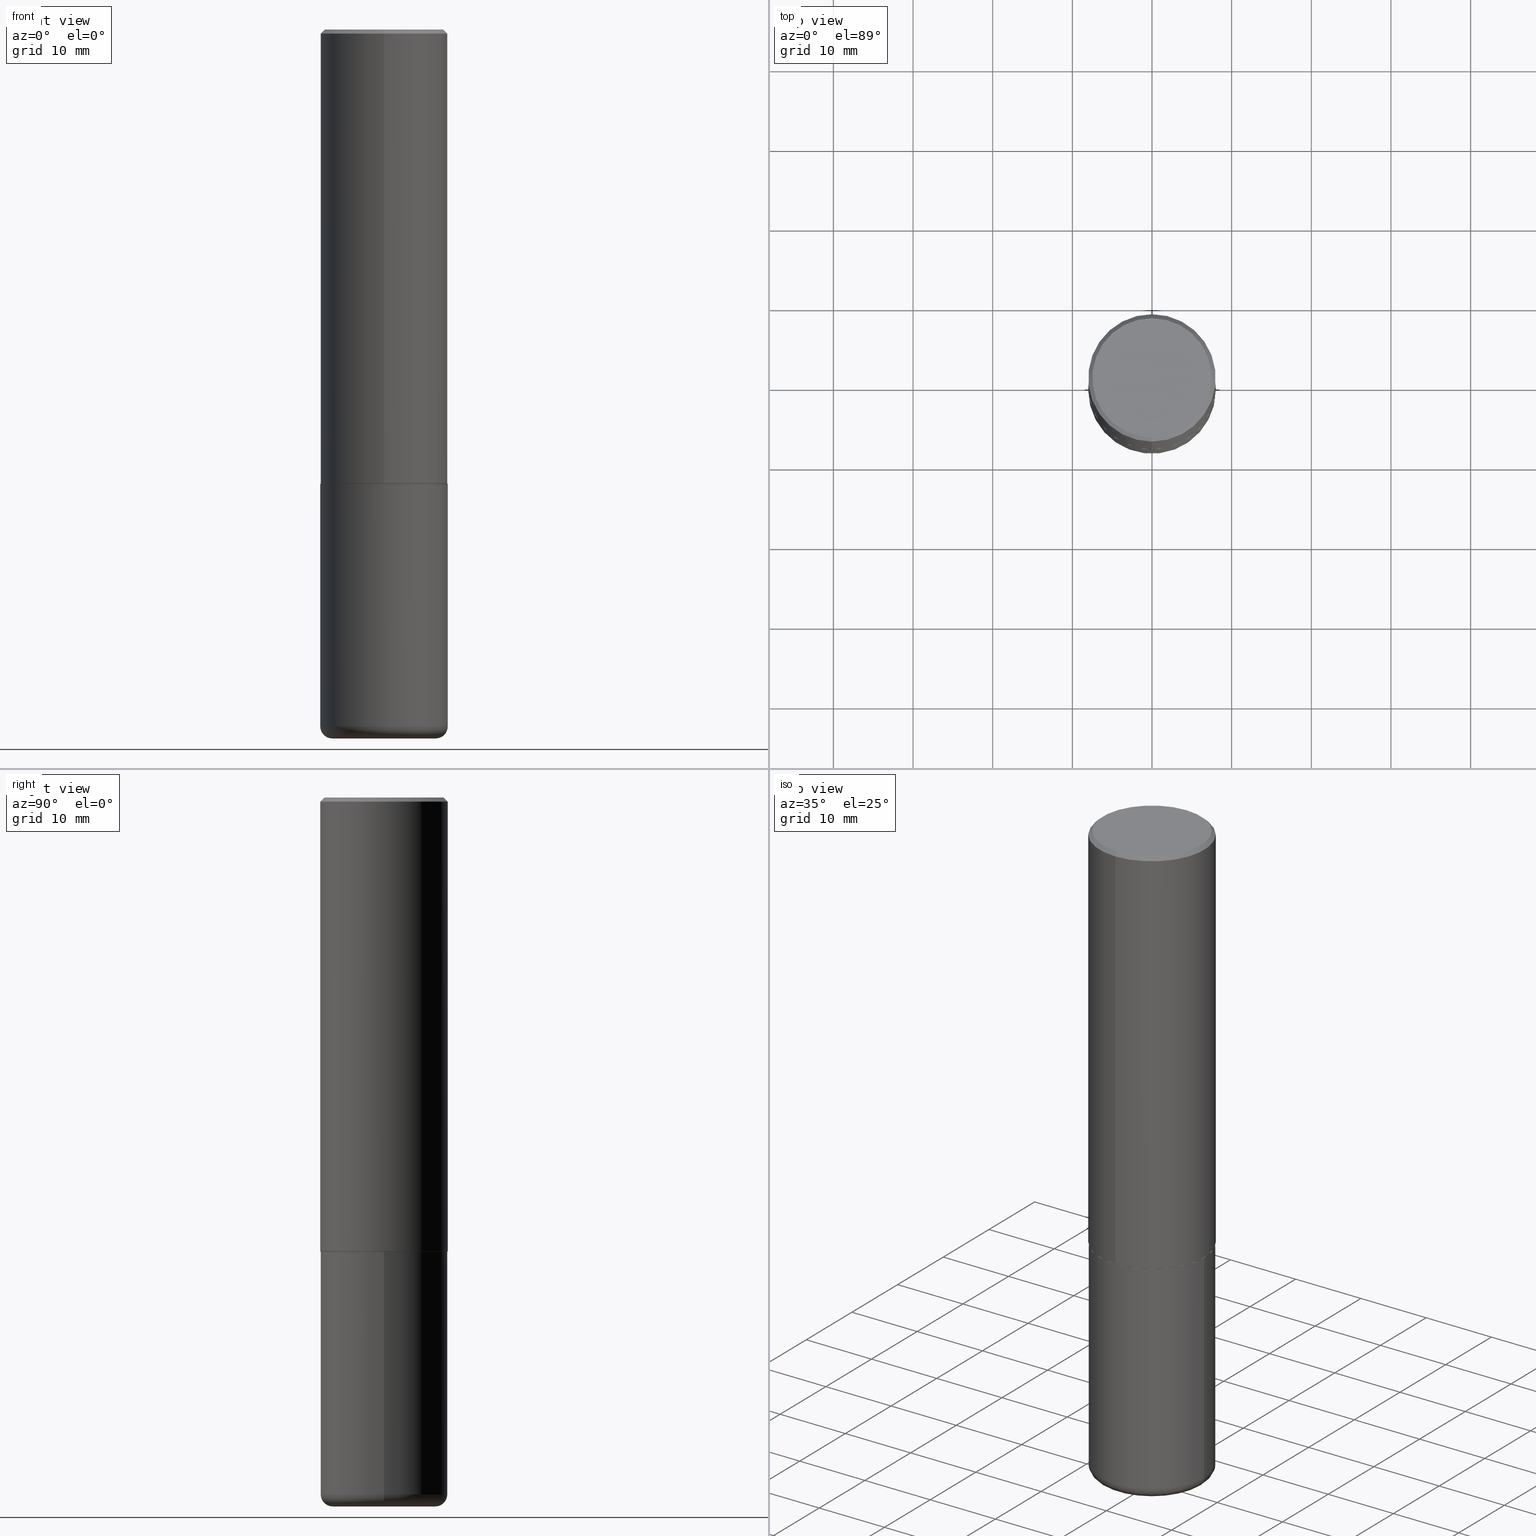
[diagram: canonical four-view strip — front | top / right | iso, engineering-drawing reading convention]
A machine part, canonical four-view strip (front | top / right | iso — engineering-drawing reading convention). The complete STEP part file that produces these views, byte-faithful:
ISO-10303-21;
HEADER;
FILE_DESCRIPTION (( 'STEP AP203' ),
    '1' );
FILE_NAME ('42688.STEP',
    '2024-03-04T01:51:00',
    ( '' ),
    ( '' ),
    'SwSTEP 2.0',
    'SolidWorks 2023',
    '' );
FILE_SCHEMA (( 'CONFIG_CONTROL_DESIGN' ));
ENDSEC;

DATA;
#1 = CARTESIAN_POINT ( 'NONE',  ( 5.486851494858434265E-29, -7.829707675025093274E-15, -2.243099999999999206 ) ) ;
#2 = CARTESIAN_POINT ( 'NONE',  ( 2.199284095337288688E-15, 0.3149499999999997857, -0.02000000000000116962 ) ) ;
#3 = AXIS2_PLACEMENT_3D ( 'NONE', #126, #71, #225 ) ;
#4 = CARTESIAN_POINT ( 'NONE',  ( 8.568678149992099474E-29, -1.223380146317249786E-14, -3.503899999999999793 ) ) ;
#5 = EDGE_CURVE ( 'NONE', #236, #306, #147, .T. ) ;
#6 = DIRECTION ( 'NONE',  ( 1.000000000000000000, -6.982962677686263555E-15, 0.000000000000000000 ) ) ;
#7 =( GEOMETRIC_REPRESENTATION_CONTEXT ( 3 ) GLOBAL_UNCERTAINTY_ASSIGNED_CONTEXT ( ( #194 ) ) GLOBAL_UNIT_ASSIGNED_CONTEXT ( ( #234, #329, #139 ) ) REPRESENTATION_CONTEXT ( 'NONE', 'WORKASPACE' ) );
#8 = LOCAL_TIME ( 20, 51, 0.000000000000000000, #269 ) ;
#9 = EDGE_CURVE ( 'NONE', #174, #331, #222, .T. ) ;
#10 = EDGE_CURVE ( 'NONE', #410, #115, #259, .T. ) ;
#11 = ORIENTED_EDGE ( 'NONE', *, *, #42, .F. ) ;
#12 = DIRECTION ( 'NONE',  ( 0.000000000000000000, 0.000000000000000000, 1.000000000000000000 ) ) ;
#13 = CIRCLE ( 'NONE', #74, 0.3149500000000002853 ) ;
#14 = AXIS2_PLACEMENT_3D ( 'NONE', #401, #274, #372 ) ;
#15 = EDGE_LOOP ( 'NONE', ( #373, #127, #90, #88 ) ) ;
#16 = DIRECTION ( 'NONE',  ( -2.446102043983075148E-29, 3.490574506274840456E-15, 1.000000000000000000 ) ) ;
#17 = EDGE_LOOP ( 'NONE', ( #337, #22, #250, #112 ) ) ;
#18 = DATE_TIME_ROLE ( 'classification_date' ) ;
#19 = DIRECTION ( 'NONE',  ( -6.982962677686266711E-15, -1.000000000000000000, 3.480615376543096919E-15 ) ) ;
#20 = ORIENTED_EDGE ( 'NONE', *, *, #402, .F. ) ;
#21 = CARTESIAN_POINT ( 'NONE',  ( 0.3149500000000000077, -1.003451736783519063E-14, -2.244099999999999540 ) ) ;
#22 = ORIENTED_EDGE ( 'NONE', *, *, #87, .T. ) ;
#23 = CALENDAR_DATE ( 2024, 3, 3 ) ;
#24 = TOROIDAL_SURFACE ( 'NONE', #209, 0.2558500000000000218, 0.05909999999999995812 ) ;
#25 = DIRECTION ( 'NONE',  ( -6.982962677686266711E-15, -1.000000000000000000, 3.491481338843145583E-15 ) ) ;
#26 = DATE_AND_TIME ( #150, #8 ) ;
#27 = ORIENTED_EDGE ( 'NONE', *, *, #5, .T. ) ;
#28 = CARTESIAN_POINT ( 'NONE',  ( 5.487876547960064752E-29, -7.835233272497900762E-15, -2.244099999999999540 ) ) ;
#29 = EDGE_CURVE ( 'NONE', #343, #362, #405, .T. ) ;
#30 = DIRECTION ( 'NONE',  ( -6.982962677686265922E-15, -1.000000000000000000, 3.469564049740290009E-15 ) ) ;
#31 = DIRECTION ( 'NONE',  ( -2.446102043983075148E-29, 3.490574506274840456E-15, 1.000000000000000000 ) ) ;
#32 = AXIS2_PLACEMENT_3D ( 'NONE', #104, #197, #327 ) ;
#33 = APPLICATION_CONTEXT ( 'configuration controlled 3d designs of mechanical parts and assemblies' ) ;
#34 = DIRECTION ( 'NONE',  ( 1.000000000000000000, -6.982962677686266711E-15, 4.876176775795936353E-29 ) ) ;
#35 = DIRECTION ( 'NONE',  ( 2.446102043983074868E-29, -3.490574506274840456E-15, -1.000000000000000000 ) ) ;
#36 = CARTESIAN_POINT ( 'NONE',  ( 0.000000000000000000, 0.000000000000000000, 0.000000000000000000 ) ) ;
#37 = CARTESIAN_POINT ( 'NONE',  ( 0.000000000000000000, 0.000000000000000000, 0.000000000000000000 ) ) ;
#38 = CARTESIAN_POINT ( 'NONE',  ( 8.424150943546558141E-29, -1.202745491604686588E-14, -3.444799999999999862 ) ) ;
#39 = CIRCLE ( 'NONE', #170, 0.3139500000000000068 ) ;
#40 = DESIGN_CONTEXT ( 'detailed design', #293, 'design' ) ;
#41 = LINE ( 'NONE', #166, #348 ) ;
#42 = EDGE_CURVE ( 'NONE', #362, #306, #379, .T. ) ;
#43 = PERSON_AND_ORGANIZATION_ROLE ( 'creator' ) ;
#44 = PERSON_AND_ORGANIZATION ( #58, #291 ) ;
#45 = AXIS2_PLACEMENT_3D ( 'NONE', #28, #353, #352 ) ;
#46 = ORIENTED_EDGE ( 'NONE', *, *, #79, .T. ) ;
#47 = EDGE_CURVE ( 'NONE', #331, #264, #412, .T. ) ;
#48 = CIRCLE ( 'NONE', #333, 0.3149500000000000077 ) ;
#49 = VECTOR ( 'NONE', #169, 39.37007874015748854 ) ;
#50 = ORIENTED_EDGE ( 'NONE', *, *, #5, .F. ) ;
#51 = DATE_AND_TIME ( #23, #137 ) ;
#52 = DIRECTION ( 'NONE',  ( -2.446102043983075148E-29, 3.490574506274840456E-15, 1.000000000000000000 ) ) ;
#53 = ADVANCED_FACE ( 'NONE', ( #285 ), #69, .T. ) ;
#54 = ORIENTED_EDGE ( 'NONE', *, *, #9, .F. ) ;
#55 = DIRECTION ( 'NONE',  ( 6.982962677686264344E-15, 1.000000000000000000, -3.496670018878890283E-15 ) ) ;
#56 = ORIENTED_EDGE ( 'NONE', *, *, #196, .T. ) ;
#57 = APPROVAL_ROLE ( '' ) ;
#58 = PERSON ( 'UNSPECIFIED', 'UNSPECIFIED', 'UNSPECIFIED', ('UNSPECIFIED'), ('UNSPECIFIED'), ('UNSPECIFIED') ) ;
#59 = CARTESIAN_POINT ( 'NONE',  ( 0.000000000000000000, 0.000000000000000000, 0.000000000000000000 ) ) ;
#60 = APPROVAL ( #199, 'UNSPECIFIED' ) ;
#61 = CARTESIAN_POINT ( 'NONE',  ( 8.568678149992099474E-29, -1.223380146317249786E-14, -3.503899999999999793 ) ) ;
#62 = COORDINATED_UNIVERSAL_TIME_OFFSET ( 5, 0, .BEHIND. ) ;
#63 = CONICAL_SURFACE ( 'NONE', #296, 0.3139500000000000068, 0.7853981633974141952 ) ;
#64 = DIRECTION ( 'NONE',  ( -6.982962677686265922E-15, -1.000000000000000000, 3.490574506274840456E-15 ) ) ;
#65 = DIRECTION ( 'NONE',  ( -2.445468806185136597E-29, 3.491481338843145583E-15, 1.000000000000000000 ) ) ;
#66 = PLANE ( 'NONE',  #310 ) ;
#67 = DIRECTION ( 'NONE',  ( 1.000000000000000000, -6.982962677686266711E-15, 0.000000000000000000 ) ) ;
#68 = DIRECTION ( 'NONE',  ( -4.851104656540957964E-15, -0.7071067811865491270, -0.7071067811865459074 ) ) ;
#69 = CYLINDRICAL_SURFACE ( 'NONE', #248, 0.3149500000000000077 ) ;
#70 = LINE ( 'NONE', #191, #324 ) ;
#71 = DIRECTION ( 'NONE',  ( -2.446102043983075148E-29, 3.490574506274840456E-15, 1.000000000000000000 ) ) ;
#72 = APPROVAL ( #152, 'UNSPECIFIED' ) ;
#73 = APPROVAL_DATE_TIME ( #262, #60 ) ;
#74 = AXIS2_PLACEMENT_3D ( 'NONE', #312, #247, #190 ) ;
#75 = AXIS2_PLACEMENT_3D ( 'NONE', #37, #163, #347 ) ;
#76 = CC_DESIGN_DATE_AND_TIME_ASSIGNMENT ( #51, #18, ( #397 ) ) ;
#77 = DIRECTION ( 'NONE',  ( -2.445468806185136597E-29, 3.491481338843145583E-15, 1.000000000000000000 ) ) ;
#78 = AXIS2_PLACEMENT_3D ( 'NONE', #95, #35, #161 ) ;
#79 = EDGE_CURVE ( 'NONE', #264, #331, #13, .T. ) ;
#80 = ORIENTED_EDGE ( 'NONE', *, *, #120, .F. ) ;
#81 = PERSON_AND_ORGANIZATION ( #58, #291 ) ;
#82 = ORIENTED_EDGE ( 'NONE', *, *, #105, .F. ) ;
#83 = DIRECTION ( 'NONE',  ( -2.446102043983075148E-29, 3.490574506274840456E-15, 1.000000000000000000 ) ) ;
#84 = CIRCLE ( 'NONE', #282, 0.3149499999999998967 ) ;
#85 = AXIS2_PLACEMENT_3D ( 'NONE', #91, #409, #214 ) ;
#86 = ORIENTED_EDGE ( 'NONE', *, *, #10, .T. ) ;
#87 = EDGE_CURVE ( 'NONE', #264, #276, #121, .T. ) ;
#88 = ORIENTED_EDGE ( 'NONE', *, *, #398, .F. ) ;
#89 = SECURITY_CLASSIFICATION_LEVEL ( 'unclassified' ) ;
#90 = ORIENTED_EDGE ( 'NONE', *, *, #97, .F. ) ;
#91 = CARTESIAN_POINT ( 'NONE',  ( 8.424150943546558141E-29, -1.202745491604686588E-14, -3.444799999999999862 ) ) ;
#92 = AXIS2_PLACEMENT_3D ( 'NONE', #338, #119, #55 ) ;
#93 = DIRECTION ( 'NONE',  ( -4.937700262164378437E-15, -0.7071067811865208164, 0.7071067811865739960 ) ) ;
#94 = FACE_OUTER_BOUND ( 'NONE', #299, .T. ) ;
#95 = CARTESIAN_POINT ( 'NONE',  ( 2.059624841783561302E-15, 0.2949499999999996014, -8.909520298305101196E-16 ) ) ;
#96 = CYLINDRICAL_SURFACE ( 'NONE', #75, 0.3149500000000000077 ) ;
#97 = EDGE_CURVE ( 'NONE', #149, #212, #48, .T. ) ;
#98 = CARTESIAN_POINT ( 'NONE',  ( 2.199284095337288688E-15, 0.3149499999999997857, -0.02000000000000116962 ) ) ;
#99 = CARTESIAN_POINT ( 'NONE',  ( 8.424150943546558141E-29, -1.202745491604686588E-14, -3.444799999999999862 ) ) ;
#100 = CARTESIAN_POINT ( 'NONE',  ( -0.3149500000000000077, 2.237854346276435590E-15, -1.549218606675782676E-29 ) ) ;
#101 = AXIS2_PLACEMENT_3D ( 'NONE', #315, #31, #159 ) ;
#102 = LINE ( 'NONE', #385, #49 ) ;
#103 = MANIFOLD_SOLID_BREP ( 'Body-Move/Copy2[2]', #295 ) ;
#104 = CARTESIAN_POINT ( 'NONE',  ( 5.489297596902418618E-29, -7.833198249531369174E-15, -2.244099999999999540 ) ) ;
#105 = EDGE_CURVE ( 'NONE', #236, #343, #155, .T. ) ;
#106 = APPROVAL_PERSON_ORGANIZATION ( #44, #60, #297 ) ;
#107 = EDGE_LOOP ( 'NONE', ( #340, #27, #11, #298 ) ) ;
#108 = APPLICATION_PROTOCOL_DEFINITION ( 'international standard', 'config_control_design', 1994, #293 ) ;
#109 = ORIENTED_EDGE ( 'NONE', *, *, #344, .T. ) ;
#110 = PERSON_AND_ORGANIZATION_ROLE ( 'creator' ) ;
#111 = DIRECTION ( 'NONE',  ( -6.982962677686265922E-15, -1.000000000000000000, 3.490574506274840456E-15 ) ) ;
#112 = ORIENTED_EDGE ( 'NONE', *, *, #233, .F. ) ;
#113 = DATE_AND_TIME ( #146, #284 ) ;
#114 = AXIS2_PLACEMENT_3D ( 'NONE', #204, #12, #141 ) ;
#115 = VERTEX_POINT ( 'NONE', #187 ) ;
#116 = VERTEX_POINT ( 'NONE', #314 ) ;
#117 = PERSON_AND_ORGANIZATION_ROLE ( 'classification_officer' ) ;
#118 = CARTESIAN_POINT ( 'NONE',  ( -6.780248536777034301E-45, 9.675378321561535985E-31, 2.771858415905051370E-16 ) ) ;
#119 = DIRECTION ( 'NONE',  ( 2.446102043983075148E-29, -3.490574506274840456E-15, -1.000000000000000000 ) ) ;
#120 = EDGE_CURVE ( 'NONE', #276, #116, #84, .T. ) ;
#121 = LINE ( 'NONE', #287, #354 ) ;
#122 = AXIS2_PLACEMENT_3D ( 'NONE', #330, #77, #6 ) ;
#123 = CC_DESIGN_APPROVAL ( #283, ( #224 ) ) ;
#124 = CARTESIAN_POINT ( 'NONE',  ( 5.489297596902418618E-29, -7.833198249531369174E-15, -2.244099999999999540 ) ) ;
#125 = DIRECTION ( 'NONE',  ( -2.446102043983075148E-29, 3.490574506274840456E-15, 1.000000000000000000 ) ) ;
#126 = CARTESIAN_POINT ( 'NONE',  ( -6.780248536777034301E-45, 9.675378321561535985E-31, 2.771858415905051370E-16 ) ) ;
#127 = ORIENTED_EDGE ( 'NONE', *, *, #402, .T. ) ;
#128 = FACE_OUTER_BOUND ( 'NONE', #255, .T. ) ;
#129 = ADVANCED_FACE ( 'NONE', ( #375 ), #328, .T. ) ;
#130 = LINE ( 'NONE', #256, #266 ) ;
#131 = PRODUCT_DEFINITION_SHAPE ( 'NONE', 'NONE',  #417 ) ;
#132 = CC_DESIGN_APPROVAL ( #72, ( #397 ) ) ;
#133 = DIRECTION ( 'NONE',  ( 2.438088387897960049E-29, -3.491481338843145188E-15, -1.000000000000000000 ) ) ;
#134 = CALENDAR_DATE ( 2024, 3, 3 ) ;
#135 = EDGE_CURVE ( 'NONE', #174, #273, #39, .T. ) ;
#136 = TOROIDAL_SURFACE ( 'NONE', #365, 0.2558500000000000218, 0.05909999999999995812 ) ;
#137 = LOCAL_TIME ( 20, 51, 0.000000000000000000, #246 ) ;
#138 = COORDINATED_UNIVERSAL_TIME_OFFSET ( 5, 0, .BEHIND. ) ;
#139 =( NAMED_UNIT ( * ) SI_UNIT ( $, .STERADIAN. ) SOLID_ANGLE_UNIT ( ) );
#140 = ORIENTED_EDGE ( 'NONE', *, *, #97, .T. ) ;
#141 = DIRECTION ( 'NONE',  ( 1.000000000000000000, 0.000000000000000000, 0.000000000000000000 ) ) ;
#142 = ORIENTED_EDGE ( 'NONE', *, *, #305, .T. ) ;
#143 = ORIENTED_EDGE ( 'NONE', *, *, #321, .F. ) ;
#144 = CC_DESIGN_PERSON_AND_ORGANIZATION_ASSIGNMENT ( #326, #43, ( #417 ) ) ;
#145 = ORIENTED_EDGE ( 'NONE', *, *, #384, .F. ) ;
#146 = CALENDAR_DATE ( 2024, 3, 3 ) ;
#147 = CIRCLE ( 'NONE', #301, 0.05909999999999999282 ) ;
#148 = CIRCLE ( 'NONE', #85, 0.3149500000000000077 ) ;
#149 = VERTEX_POINT ( 'NONE', #21 ) ;
#150 = CALENDAR_DATE ( 2024, 3, 3 ) ;
#151 = CARTESIAN_POINT ( 'NONE',  ( -2.192301132659548636E-15, -0.3139500000000078339, -2.244099999999998651 ) ) ;
#152 = APPROVAL_STATUS ( 'not_yet_approved' ) ;
#153 = EDGE_LOOP ( 'NONE', ( #245, #46, #332, #80 ) ) ;
#154 = ADVANCED_FACE ( 'NONE', ( #277 ), #203, .T. ) ;
#155 = CIRCLE ( 'NONE', #386, 0.2558500000000000218 ) ;
#156 = DIRECTION ( 'NONE',  ( 1.000000000000000000, -6.982962677686263555E-15, 0.000000000000000000 ) ) ;
#157 = CIRCLE ( 'NONE', #101, 0.3149499999999998967 ) ;
#158 = APPROVAL_PERSON_ORGANIZATION ( #389, #283, #390 ) ;
#159 = DIRECTION ( 'NONE',  ( -6.982962677686264344E-15, -1.000000000000000000, 3.496670018878890283E-15 ) ) ;
#160 = EDGE_LOOP ( 'NONE', ( #303, #308 ) ) ;
#161 = DIRECTION ( 'NONE',  ( 6.982962677686265922E-15, 1.000000000000000000, -3.490574506274840456E-15 ) ) ;
#162 = CARTESIAN_POINT ( 'NONE',  ( 4.892204087966167602E-31, -6.981149012549705614E-17, -0.02000000000000006981 ) ) ;
#163 = DIRECTION ( 'NONE',  ( -2.445468806185136597E-29, 3.491481338843145583E-15, 1.000000000000000000 ) ) ;
#164 = VECTOR ( 'NONE', #93, 39.37007874015748854 ) ;
#165 = CARTESIAN_POINT ( 'NONE',  ( 0.2558500000000000218, -1.402039246425852851E-14, -3.503899999999999793 ) ) ;
#166 = CARTESIAN_POINT ( 'NONE',  ( 0.3149500000000000077, -2.199284095337289871E-15, 1.535751875536930130E-29 ) ) ;
#167 = ADVANCED_FACE ( 'NONE', ( #208 ), #302, .T. ) ;
#168 = DATE_AND_TIME ( #134, #336 ) ;
#169 = DIRECTION ( 'NONE',  ( 5.024295867787889629E-15, 0.7071067811865257013, 0.7071067811865691111 ) ) ;
#170 = AXIS2_PLACEMENT_3D ( 'NONE', #181, #16, #307 ) ;
#171 = ADVANCED_FACE ( 'NONE', ( #335 ), #270, .T. ) ;
#172 = EDGE_LOOP ( 'NONE', ( #206, #142, #178, #143 ) ) ;
#173 = EDGE_CURVE ( 'NONE', #306, #362, #148, .T. ) ;
#174 = VERTEX_POINT ( 'NONE', #240 ) ;
#175 = SHAPE_DEFINITION_REPRESENTATION ( #131, #192 ) ;
#176 = AXIS2_PLACEMENT_3D ( 'NONE', #1, #226, #30 ) ;
#177 = ADVANCED_FACE ( 'NONE', ( #363 ), #317, .T. ) ;
#178 = ORIENTED_EDGE ( 'NONE', *, *, #377, .T. ) ;
#179 = EDGE_LOOP ( 'NONE', ( #50, #180, #408, #271 ) ) ;
#180 = ORIENTED_EDGE ( 'NONE', *, *, #105, .T. ) ;
#181 = CARTESIAN_POINT ( 'NONE',  ( 5.489297596902418618E-29, -7.833198249531369174E-15, -2.244099999999999540 ) ) ;
#182 = ORIENTED_EDGE ( 'NONE', *, *, #321, .T. ) ;
#183 = ADVANCED_FACE ( 'NONE', ( #128 ), #286, .F. ) ;
#184 = DIRECTION ( 'NONE',  ( 1.000000000000000000, -6.982962677686263555E-15, 0.000000000000000000 ) ) ;
#185 = PLANE ( 'NONE',  #275 ) ;
#186 = CC_DESIGN_PERSON_AND_ORGANIZATION_ASSIGNMENT ( #81, #117, ( #397 ) ) ;
#187 = CARTESIAN_POINT ( 'NONE',  ( -2.092108864420426059E-15, -0.2949499999999996014, 1.306730792216267924E-15 ) ) ;
#188 = DIRECTION ( 'NONE',  ( -6.982962677686266711E-15, -1.000000000000000000, 3.480615376543096919E-15 ) ) ;
#189 = DIRECTION ( 'NONE',  ( -2.446102043983075148E-29, 3.490574506274840456E-15, 1.000000000000000000 ) ) ;
#190 = DIRECTION ( 'NONE',  ( -6.982962677686265922E-15, -1.000000000000000000, 3.469564049740290009E-15 ) ) ;
#191 = CARTESIAN_POINT ( 'NONE',  ( -2.199284095337289871E-15, -0.3149500000000000632, 1.099356440751261260E-15 ) ) ;
#192 = ADVANCED_BREP_SHAPE_REPRESENTATION ( '42688', ( #243, #103, #114 ), #7 ) ;
#193 = DIRECTION ( 'NONE',  ( -2.445468806185136597E-29, 3.491481338843145583E-15, 1.000000000000000000 ) ) ;
#194 = UNCERTAINTY_MEASURE_WITH_UNIT (LENGTH_MEASURE( 1.000000000000000082E-05 ), #234, 'distance_accuracy_value', 'NONE');
#195 = AXIS2_PLACEMENT_3D ( 'NONE', #407, #52, #111 ) ;
#196 = EDGE_CURVE ( 'NONE', #212, #149, #223, .T. ) ;
#197 = DIRECTION ( 'NONE',  ( -2.446102043983074868E-29, 3.490574506274840456E-15, 1.000000000000000000 ) ) ;
#198 = ADVANCED_FACE ( 'NONE', ( #227 ), #24, .T. ) ;
#199 = APPROVAL_STATUS ( 'not_yet_approved' ) ;
#200 = ADVANCED_FACE ( 'NONE', ( #281 ), #136, .T. ) ;
#201 =( LENGTH_UNIT ( ) NAMED_UNIT ( * ) SI_UNIT ( $, .METRE. ) );
#202 = AXIS2_PLACEMENT_3D ( 'NONE', #349, #371, #184 ) ;
#203 = CONICAL_SURFACE ( 'NONE', #14, 0.3149499999999998967, 0.7853981633974471688 ) ;
#204 = CARTESIAN_POINT ( 'NONE',  ( 0.000000000000000000, 0.000000000000000000, 0.000000000000000000 ) ) ;
#205 = ORIENTED_EDGE ( 'NONE', *, *, #388, .F. ) ;
#206 = ORIENTED_EDGE ( 'NONE', *, *, #220, .F. ) ;
#207 = PERSON_AND_ORGANIZATION_ROLE ( 'design_supplier' ) ;
#208 = FACE_OUTER_BOUND ( 'NONE', #17, .T. ) ;
#209 = AXIS2_PLACEMENT_3D ( 'NONE', #38, #193, #288 ) ;
#210 = CC_DESIGN_SECURITY_CLASSIFICATION ( #397, ( #224 ) ) ;
#211 = ORIENTED_EDGE ( 'NONE', *, *, #398, .T. ) ;
#212 = VERTEX_POINT ( 'NONE', #350 ) ;
#213 = EDGE_LOOP ( 'NONE', ( #205, #109, #289, #395 ) ) ;
#214 = DIRECTION ( 'NONE',  ( 1.000000000000000000, -6.982962677686263555E-15, 0.000000000000000000 ) ) ;
#215 = CLOSED_SHELL ( 'NONE', ( #267, #198, #238, #53, #200, #351 ) ) ;
#216 = CIRCLE ( 'NONE', #3, 0.2949499999999996014 ) ;
#217 = CARTESIAN_POINT ( 'NONE',  ( 0.2558500000000000218, -1.381404591713289811E-14, -3.444799999999999862 ) ) ;
#218 = DIRECTION ( 'NONE',  ( -6.982962677686266711E-15, -1.000000000000000000, 3.480615376543096919E-15 ) ) ;
#219 = DIRECTION ( 'NONE',  ( -2.446102043983075148E-29, 3.490574506274840456E-15, 1.000000000000000000 ) ) ;
#220 = EDGE_CURVE ( 'NONE', #115, #410, #216, .T. ) ;
#221 = AXIS2_PLACEMENT_3D ( 'NONE', #217, #25, #311 ) ;
#222 = LINE ( 'NONE', #151, #164 ) ;
#223 = CIRCLE ( 'NONE', #45, 0.3149500000000000077 ) ;
#224 = PRODUCT_DEFINITION_FORMATION_WITH_SPECIFIED_SOURCE ( 'ANY', '', #242, .NOT_KNOWN. ) ;
#225 = DIRECTION ( 'NONE',  ( -6.982962677686265922E-15, -1.000000000000000000, 3.490574506274840456E-15 ) ) ;
#226 = DIRECTION ( 'NONE',  ( -2.446102043983075148E-29, 3.490574506274840456E-15, 1.000000000000000000 ) ) ;
#227 = FACE_OUTER_BOUND ( 'NONE', #107, .T. ) ;
#228 = FACE_OUTER_BOUND ( 'NONE', #244, .T. ) ;
#229 = CC_DESIGN_PERSON_AND_ORGANIZATION_ASSIGNMENT ( #258, #265, ( #242 ) ) ;
#230 = AXIS2_PLACEMENT_3D ( 'NONE', #292, #253, #218 ) ;
#231 = DIRECTION ( 'NONE',  ( -2.445468806185136877E-29, 3.491481338843145188E-15, 1.000000000000000000 ) ) ;
#232 = APPROVAL_STATUS ( 'not_yet_approved' ) ;
#233 = EDGE_CURVE ( 'NONE', #331, #116, #70, .T. ) ;
#234 =( CONVERSION_BASED_UNIT ( 'INCH', #325 ) LENGTH_UNIT ( ) NAMED_UNIT ( #414 ) );
#235 = DIRECTION ( 'NONE',  ( -2.445468806185136877E-29, 3.491481338843145188E-15, 1.000000000000000000 ) ) ;
#236 = VERTEX_POINT ( 'NONE', #254 ) ;
#237 = CALENDAR_DATE ( 2024, 3, 3 ) ;
#238 = ADVANCED_FACE ( 'NONE', ( #378 ), #185, .F. ) ;
#239 = ORIENTED_EDGE ( 'NONE', *, *, #135, .T. ) ;
#240 = CARTESIAN_POINT ( 'NONE',  ( -2.192301132659548636E-15, -0.3139500000000078339, -2.244099999999998651 ) ) ;
#241 = ORIENTED_EDGE ( 'NONE', *, *, #173, .T. ) ;
#242 = PRODUCT ( '42688', '42688', '', ( #356 ) ) ;
#243 = MANIFOLD_SOLID_BREP ( 'Body-Move/Copy2[1]', #215 ) ;
#244 = EDGE_LOOP ( 'NONE', ( #239, #381, #268, #54 ) ) ;
#245 = ORIENTED_EDGE ( 'NONE', *, *, #87, .F. ) ;
#246 = COORDINATED_UNIVERSAL_TIME_OFFSET ( 5, 0, .BEHIND. ) ;
#247 = DIRECTION ( 'NONE',  ( -2.446102043983075148E-29, 3.490574506274840456E-15, 1.000000000000000000 ) ) ;
#248 = AXIS2_PLACEMENT_3D ( 'NONE', #36, #411, #34 ) ;
#249 = CIRCLE ( 'NONE', #122, 0.2558500000000000218 ) ;
#250 = ORIENTED_EDGE ( 'NONE', *, *, #377, .F. ) ;
#251 = DIRECTION ( 'NONE',  ( -2.446102043983075148E-29, 3.490574506274840456E-15, 1.000000000000000000 ) ) ;
#252 = DIRECTION ( 'NONE',  ( -6.982962677686264344E-15, -1.000000000000000000, 3.496670018878890283E-15 ) ) ;
#253 = DIRECTION ( 'NONE',  ( -2.446102043983075148E-29, 3.490574506274840456E-15, 1.000000000000000000 ) ) ;
#254 = CARTESIAN_POINT ( 'NONE',  ( -0.2558500000000000218, -1.010273922175035445E-14, -3.503899999999999793 ) ) ;
#255 = EDGE_LOOP ( 'NONE', ( #86, #367 ) ) ;
#256 = CARTESIAN_POINT ( 'NONE',  ( -2.160713844398142179E-15, -0.3149499999999999522, -0.01999999999999896652 ) ) ;
#257 = DIRECTION ( 'NONE',  ( -2.445468806185136597E-29, 3.491481338843145583E-15, 1.000000000000000000 ) ) ;
#258 = PERSON_AND_ORGANIZATION ( #58, #291 ) ;
#259 = CIRCLE ( 'NONE', #393, 0.2949499999999996014 ) ;
#260 = VECTOR ( 'NONE', #231, 39.37007874015748143 ) ;
#261 = DATE_TIME_ROLE ( 'creation_date' ) ;
#262 = DATE_AND_TIME ( #237, #380 ) ;
#263 = CARTESIAN_POINT ( 'NONE',  ( 2.129454468560424995E-15, 0.2949499999999996014, -7.523591090352575511E-16 ) ) ;
#264 = VERTEX_POINT ( 'NONE', #323 ) ;
#265 = PERSON_AND_ORGANIZATION_ROLE ( 'design_owner' ) ;
#266 = VECTOR ( 'NONE', #68, 39.37007874015748143 ) ;
#267 = ADVANCED_FACE ( 'NONE', ( #319 ), #96, .T. ) ;
#268 = ORIENTED_EDGE ( 'NONE', *, *, #47, .F. ) ;
#269 = COORDINATED_UNIVERSAL_TIME_OFFSET ( 5, 0, .BEHIND. ) ;
#270 = CYLINDRICAL_SURFACE ( 'NONE', #195, 0.3149500000000000632 ) ;
#271 = ORIENTED_EDGE ( 'NONE', *, *, #173, .F. ) ;
#272 = PERSON_AND_ORGANIZATION ( #58, #291 ) ;
#273 = VERTEX_POINT ( 'NONE', #415 ) ;
#274 = DIRECTION ( 'NONE',  ( 2.446102043983075148E-29, -3.490574506274840456E-15, -1.000000000000000000 ) ) ;
#275 = AXIS2_PLACEMENT_3D ( 'NONE', #290, #322, #313 ) ;
#276 = VERTEX_POINT ( 'NONE', #2 ) ;
#277 = FACE_OUTER_BOUND ( 'NONE', #403, .T. ) ;
#278 = DIRECTION ( 'NONE',  ( -1.000000000000000000, 7.105427357600993181E-15, 0.000000000000000000 ) ) ;
#279 = PERSON_AND_ORGANIZATION ( #58, #291 ) ;
#280 = CARTESIAN_POINT ( 'NONE',  ( -0.2558500000000000218, -1.020953132660465019E-14, -3.444799999999999862 ) ) ;
#281 = FACE_OUTER_BOUND ( 'NONE', #179, .T. ) ;
#282 = AXIS2_PLACEMENT_3D ( 'NONE', #162, #125, #252 ) ;
#283 = APPROVAL ( #232, 'UNSPECIFIED' ) ;
#284 = LOCAL_TIME ( 20, 51, 0.000000000000000000, #62 ) ;
#285 = FACE_OUTER_BOUND ( 'NONE', #341, .T. ) ;
#286 = PLANE ( 'NONE',  #78 ) ;
#287 = CARTESIAN_POINT ( 'NONE',  ( 2.237854346276435590E-15, 0.3149500000000000632, -1.099356440751261260E-15 ) ) ;
#288 = DIRECTION ( 'NONE',  ( 1.000000000000000000, -6.982962677686263555E-15, 4.883557194083111780E-29 ) ) ;
#289 = ORIENTED_EDGE ( 'NONE', *, *, #9, .T. ) ;
#290 = CARTESIAN_POINT ( 'NONE',  ( 5.487876547960064752E-29, -7.835233272497900762E-15, -2.244099999999999540 ) ) ;
#291 = ORGANIZATION ( 'UNSPECIFIED', 'UNSPECIFIED', '' ) ;
#292 = CARTESIAN_POINT ( 'NONE',  ( 5.489297596902418618E-29, -7.833198249531369174E-15, -2.244099999999999540 ) ) ;
#293 = APPLICATION_CONTEXT ( 'configuration controlled 3d designs of mechanical parts and assemblies' ) ;
#294 = COORDINATED_UNIVERSAL_TIME_OFFSET ( 5, 0, .BEHIND. ) ;
#295 = CLOSED_SHELL ( 'NONE', ( #370, #167, #129, #154, #171, #177, #391, #183 ) ) ;
#296 = AXIS2_PLACEMENT_3D ( 'NONE', #124, #251, #188 ) ;
#297 = APPROVAL_ROLE ( '' ) ;
#298 = ORIENTED_EDGE ( 'NONE', *, *, #29, .F. ) ;
#299 = EDGE_LOOP ( 'NONE', ( #145, #82 ) ) ;
#300 = PERSON_AND_ORGANIZATION ( #58, #291 ) ;
#301 = AXIS2_PLACEMENT_3D ( 'NONE', #280, #318, #278 ) ;
#302 = CYLINDRICAL_SURFACE ( 'NONE', #355, 0.3149500000000000632 ) ;
#303 = ORIENTED_EDGE ( 'NONE', *, *, #135, .F. ) ;
#304 = DIRECTION ( 'NONE',  ( -2.446102043983075148E-29, 3.490574506274840456E-15, 1.000000000000000000 ) ) ;
#305 = EDGE_CURVE ( 'NONE', #115, #116, #130, .T. ) ;
#306 = VERTEX_POINT ( 'NONE', #382 ) ;
#307 = DIRECTION ( 'NONE',  ( -6.982962677686266711E-15, -1.000000000000000000, 3.480615376543096919E-15 ) ) ;
#308 = ORIENTED_EDGE ( 'NONE', *, *, #344, .F. ) ;
#309 = DIRECTION ( 'NONE',  ( -6.982962677686265922E-15, -1.000000000000000000, 3.490574506274840456E-15 ) ) ;
#310 = AXIS2_PLACEMENT_3D ( 'NONE', #4, #133, #383 ) ;
#311 = DIRECTION ( 'NONE',  ( 1.000000000000000000, -6.982962677686262766E-15, 0.000000000000000000 ) ) ;
#312 = CARTESIAN_POINT ( 'NONE',  ( 5.486851494858434265E-29, -7.829707675025093274E-15, -2.243099999999999206 ) ) ;
#313 = DIRECTION ( 'NONE',  ( -1.000000000000000000, 6.982962677686265922E-15, -4.876176775795935793E-29 ) ) ;
#314 = CARTESIAN_POINT ( 'NONE',  ( -2.160713844398142179E-15, -0.3149499999999999522, -0.01999999999999896652 ) ) ;
#315 = CARTESIAN_POINT ( 'NONE',  ( 4.892204087966167602E-31, -6.981149012549705614E-17, -0.02000000000000006981 ) ) ;
#316 = CC_DESIGN_DATE_AND_TIME_ASSIGNMENT ( #168, #261, ( #417 ) ) ;
#317 = CONICAL_SURFACE ( 'NONE', #394, 0.3139500000000000068, 0.7853981633974141952 ) ;
#318 = DIRECTION ( 'NONE',  ( 7.105427357601001859E-15, 1.000000000000000000, -3.491481338843145583E-15 ) ) ;
#319 = FACE_OUTER_BOUND ( 'NONE', #15, .T. ) ;
#320 = DIRECTION ( 'NONE',  ( -2.446102043983075148E-29, 3.490574506274840456E-15, 1.000000000000000000 ) ) ;
#321 = EDGE_CURVE ( 'NONE', #410, #276, #413, .T. ) ;
#322 = DIRECTION ( 'NONE',  ( 2.438088387897960049E-29, -3.491481338843145188E-15, -1.000000000000000000 ) ) ;
#323 = CARTESIAN_POINT ( 'NONE',  ( 2.237854346276463595E-15, 0.3149499999999924027, -2.243100000000000538 ) ) ;
#324 = VECTOR ( 'NONE', #219, 39.37007874015748143 ) ;
#325 = LENGTH_MEASURE_WITH_UNIT ( LENGTH_MEASURE( 0.02539999999999999897 ), #201 );
#326 = PERSON_AND_ORGANIZATION ( #58, #291 ) ;
#327 = DIRECTION ( 'NONE',  ( -6.982962677686265922E-15, -1.000000000000000000, 3.490574506274840456E-15 ) ) ;
#328 = CONICAL_SURFACE ( 'NONE', #92, 0.3149499999999998967, 0.7853981633974471688 ) ;
#329 =( NAMED_UNIT ( * ) PLANE_ANGLE_UNIT ( ) SI_UNIT ( $, .RADIAN. ) );
#330 = CARTESIAN_POINT ( 'NONE',  ( 8.568678149992099474E-29, -1.223380146317249786E-14, -3.503899999999999793 ) ) ;
#331 = VERTEX_POINT ( 'NONE', #346 ) ;
#332 = ORIENTED_EDGE ( 'NONE', *, *, #233, .T. ) ;
#333 = AXIS2_PLACEMENT_3D ( 'NONE', #345, #416, #67 ) ;
#334 = VECTOR ( 'NONE', #374, 39.37007874015748143 ) ;
#335 = FACE_OUTER_BOUND ( 'NONE', #153, .T. ) ;
#336 = LOCAL_TIME ( 20, 51, 0.000000000000000000, #294 ) ;
#337 = ORIENTED_EDGE ( 'NONE', *, *, #47, .T. ) ;
#338 = CARTESIAN_POINT ( 'NONE',  ( 4.892204087966167602E-31, -6.981149012549705614E-17, -0.02000000000000006981 ) ) ;
#339 = PRODUCT_RELATED_PRODUCT_CATEGORY ( 'detail', '', ( #242 ) ) ;
#340 = ORIENTED_EDGE ( 'NONE', *, *, #384, .T. ) ;
#341 = EDGE_LOOP ( 'NONE', ( #20, #241, #211, #399 ) ) ;
#342 = CARTESIAN_POINT ( 'NONE',  ( 5.489297596902418618E-29, -7.833198249531369174E-15, -2.244099999999999540 ) ) ;
#343 = VERTEX_POINT ( 'NONE', #165 ) ;
#344 = EDGE_CURVE ( 'NONE', #273, #174, #406, .T. ) ;
#345 = CARTESIAN_POINT ( 'NONE',  ( 5.487876547960064752E-29, -7.835233272497900762E-15, -2.244099999999999540 ) ) ;
#346 = CARTESIAN_POINT ( 'NONE',  ( -2.199284095337236228E-15, -0.3149500000000081124, -2.243099999999998317 ) ) ;
#347 = DIRECTION ( 'NONE',  ( 1.000000000000000000, -6.982962677686266711E-15, 4.876176775795936353E-29 ) ) ;
#348 = VECTOR ( 'NONE', #235, 39.37007874015748143 ) ;
#349 = CARTESIAN_POINT ( 'NONE',  ( 8.424150943546558141E-29, -1.202745491604686588E-14, -3.444799999999999862 ) ) ;
#350 = CARTESIAN_POINT ( 'NONE',  ( -0.3149500000000000077, -7.693489747995948915E-15, -2.244099999999999540 ) ) ;
#351 = ADVANCED_FACE ( 'NONE', ( #94 ), #66, .T. ) ;
#352 = DIRECTION ( 'NONE',  ( 1.000000000000000000, -6.982962677686266711E-15, 0.000000000000000000 ) ) ;
#353 = DIRECTION ( 'NONE',  ( -2.445468806185136597E-29, 3.491481338843145583E-15, 1.000000000000000000 ) ) ;
#354 = VECTOR ( 'NONE', #320, 39.37007874015748143 ) ;
#355 = AXIS2_PLACEMENT_3D ( 'NONE', #59, #83, #309 ) ;
#356 = MECHANICAL_CONTEXT ( 'NONE', #33, 'mechanical' ) ;
#357 = CC_DESIGN_PERSON_AND_ORGANIZATION_ASSIGNMENT ( #279, #207, ( #224 ) ) ;
#358 = FACE_OUTER_BOUND ( 'NONE', #160, .T. ) ;
#359 = CC_DESIGN_APPROVAL ( #60, ( #417 ) ) ;
#360 = PLANE ( 'NONE',  #32 ) ;
#361 = ORIENTED_EDGE ( 'NONE', *, *, #10, .F. ) ;
#362 = VERTEX_POINT ( 'NONE', #376 ) ;
#363 = FACE_OUTER_BOUND ( 'NONE', #213, .T. ) ;
#364 = EDGE_LOOP ( 'NONE', ( #140, #56 ) ) ;
#365 = AXIS2_PLACEMENT_3D ( 'NONE', #99, #257, #418 ) ;
#366 = CC_DESIGN_PERSON_AND_ORGANIZATION_ASSIGNMENT ( #300, #110, ( #224 ) ) ;
#367 = ORIENTED_EDGE ( 'NONE', *, *, #220, .T. ) ;
#368 = APPROVAL_DATE_TIME ( #26, #283 ) ;
#369 = ORIENTED_EDGE ( 'NONE', *, *, #120, .T. ) ;
#370 = ADVANCED_FACE ( 'NONE', ( #228 ), #63, .T. ) ;
#371 = DIRECTION ( 'NONE',  ( -2.445468806185136597E-29, 3.491481338843145583E-15, 1.000000000000000000 ) ) ;
#372 = DIRECTION ( 'NONE',  ( 6.982962677686264344E-15, 1.000000000000000000, -3.496670018878890283E-15 ) ) ;
#373 = ORIENTED_EDGE ( 'NONE', *, *, #42, .T. ) ;
#374 = DIRECTION ( 'NONE',  ( 4.937700262164541731E-15, 0.7071067811865442421, -0.7071067811865507924 ) ) ;
#375 = FACE_OUTER_BOUND ( 'NONE', #172, .T. ) ;
#376 = CARTESIAN_POINT ( 'NONE',  ( 0.3149500000000000077, -1.422673901138415575E-14, -3.444799999999999862 ) ) ;
#377 = EDGE_CURVE ( 'NONE', #116, #276, #157, .T. ) ;
#378 = FACE_OUTER_BOUND ( 'NONE', #364, .T. ) ;
#379 = CIRCLE ( 'NONE', #202, 0.3149500000000000077 ) ;
#380 = LOCAL_TIME ( 20, 51, 0.000000000000000000, #138 ) ;
#381 = ORIENTED_EDGE ( 'NONE', *, *, #388, .T. ) ;
#382 = CARTESIAN_POINT ( 'NONE',  ( -0.3149500000000000077, -9.789600569770431475E-15, -3.444799999999999862 ) ) ;
#383 = DIRECTION ( 'NONE',  ( -1.000000000000000000, 6.982962677686265922E-15, -4.876176775795935793E-29 ) ) ;
#384 = EDGE_CURVE ( 'NONE', #343, #236, #249, .T. ) ;
#385 = CARTESIAN_POINT ( 'NONE',  ( 2.230748918918889014E-15, 0.3139499999999921798, -2.244100000000000872 ) ) ;
#386 = AXIS2_PLACEMENT_3D ( 'NONE', #61, #65, #156 ) ;
#387 = APPROVAL_PERSON_ORGANIZATION ( #272, #72, #57 ) ;
#388 = EDGE_CURVE ( 'NONE', #273, #264, #102, .T. ) ;
#389 = PERSON_AND_ORGANIZATION ( #58, #291 ) ;
#390 = APPROVAL_ROLE ( '' ) ;
#391 = ADVANCED_FACE ( 'NONE', ( #358 ), #360, .F. ) ;
#392 = APPLICATION_PROTOCOL_DEFINITION ( 'international standard', 'config_control_design', 1994, #33 ) ;
#393 = AXIS2_PLACEMENT_3D ( 'NONE', #118, #189, #64 ) ;
#394 = AXIS2_PLACEMENT_3D ( 'NONE', #342, #304, #19 ) ;
#395 = ORIENTED_EDGE ( 'NONE', *, *, #79, .F. ) ;
#396 = LINE ( 'NONE', #100, #260 ) ;
#397 = SECURITY_CLASSIFICATION ( '', '', #89 ) ;
#398 = EDGE_CURVE ( 'NONE', #362, #149, #41, .T. ) ;
#399 = ORIENTED_EDGE ( 'NONE', *, *, #196, .F. ) ;
#400 = APPROVAL_DATE_TIME ( #113, #72 ) ;
#401 = CARTESIAN_POINT ( 'NONE',  ( 4.892204087966167602E-31, -6.981149012549705614E-17, -0.02000000000000006981 ) ) ;
#402 = EDGE_CURVE ( 'NONE', #306, #212, #396, .T. ) ;
#403 = EDGE_LOOP ( 'NONE', ( #404, #361, #182, #369 ) ) ;
#404 = ORIENTED_EDGE ( 'NONE', *, *, #305, .F. ) ;
#405 = CIRCLE ( 'NONE', #221, 0.05909999999999999282 ) ;
#406 = CIRCLE ( 'NONE', #230, 0.3139500000000000068 ) ;
#407 = CARTESIAN_POINT ( 'NONE',  ( 0.000000000000000000, 0.000000000000000000, 0.000000000000000000 ) ) ;
#408 = ORIENTED_EDGE ( 'NONE', *, *, #29, .T. ) ;
#409 = DIRECTION ( 'NONE',  ( -2.445468806185136597E-29, 3.491481338843145583E-15, 1.000000000000000000 ) ) ;
#410 = VERTEX_POINT ( 'NONE', #263 ) ;
#411 = DIRECTION ( 'NONE',  ( -2.445468806185136597E-29, 3.491481338843145583E-15, 1.000000000000000000 ) ) ;
#412 = CIRCLE ( 'NONE', #176, 0.3149500000000002853 ) ;
#413 = LINE ( 'NONE', #98, #334 ) ;
#414 = DIMENSIONAL_EXPONENTS ( 1.000000000000000000, 0.000000000000000000, 0.000000000000000000, 0.000000000000000000, 0.000000000000000000, 0.000000000000000000, 0.000000000000000000 ) ;
#415 = CARTESIAN_POINT ( 'NONE',  ( 2.234301632597690306E-15, 0.3139499999999921798, -2.244100000000000872 ) ) ;
#416 = DIRECTION ( 'NONE',  ( -2.445468806185136597E-29, 3.491481338843145583E-15, 1.000000000000000000 ) ) ;
#417 = PRODUCT_DEFINITION ( 'UNKNOWN', '', #224, #40 ) ;
#418 = DIRECTION ( 'NONE',  ( 1.000000000000000000, -6.982962677686263555E-15, 4.883557194083111780E-29 ) ) ;
ENDSEC;
END-ISO-10303-21;
